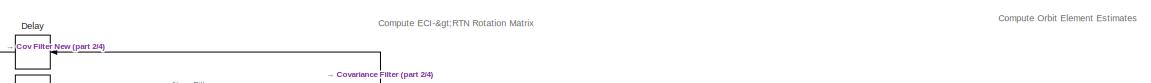
[diagram: root canvas - part 1/4, top center region]
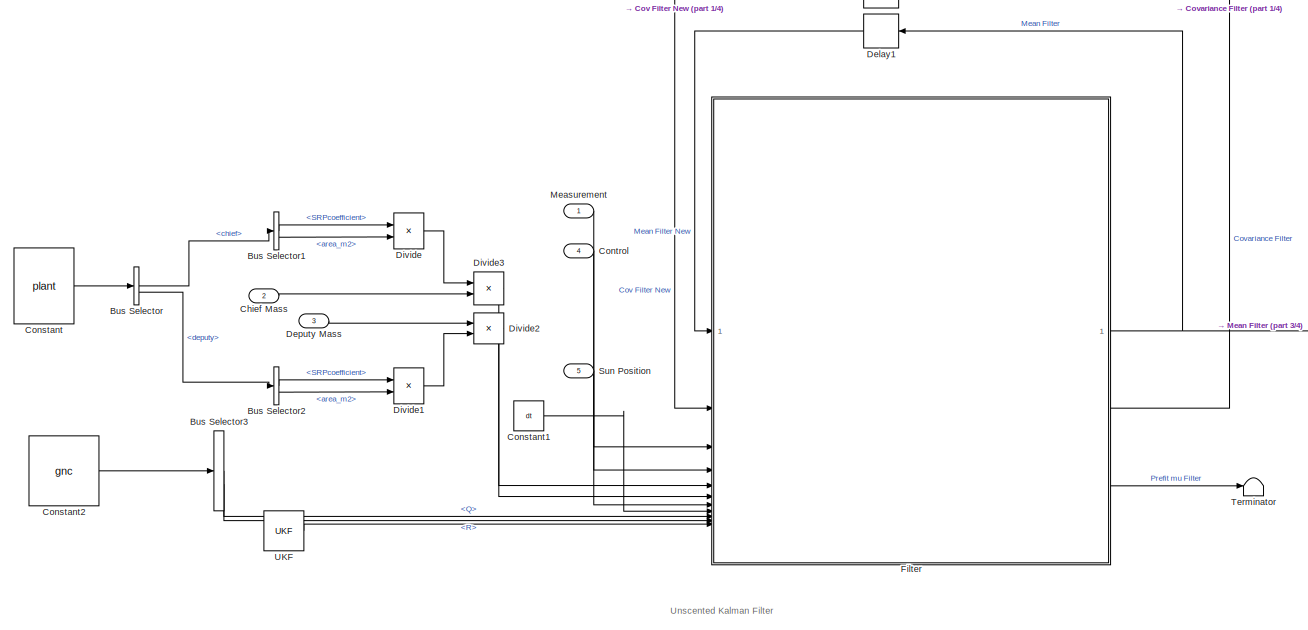
[diagram: root canvas - part 2/4, middle left region]
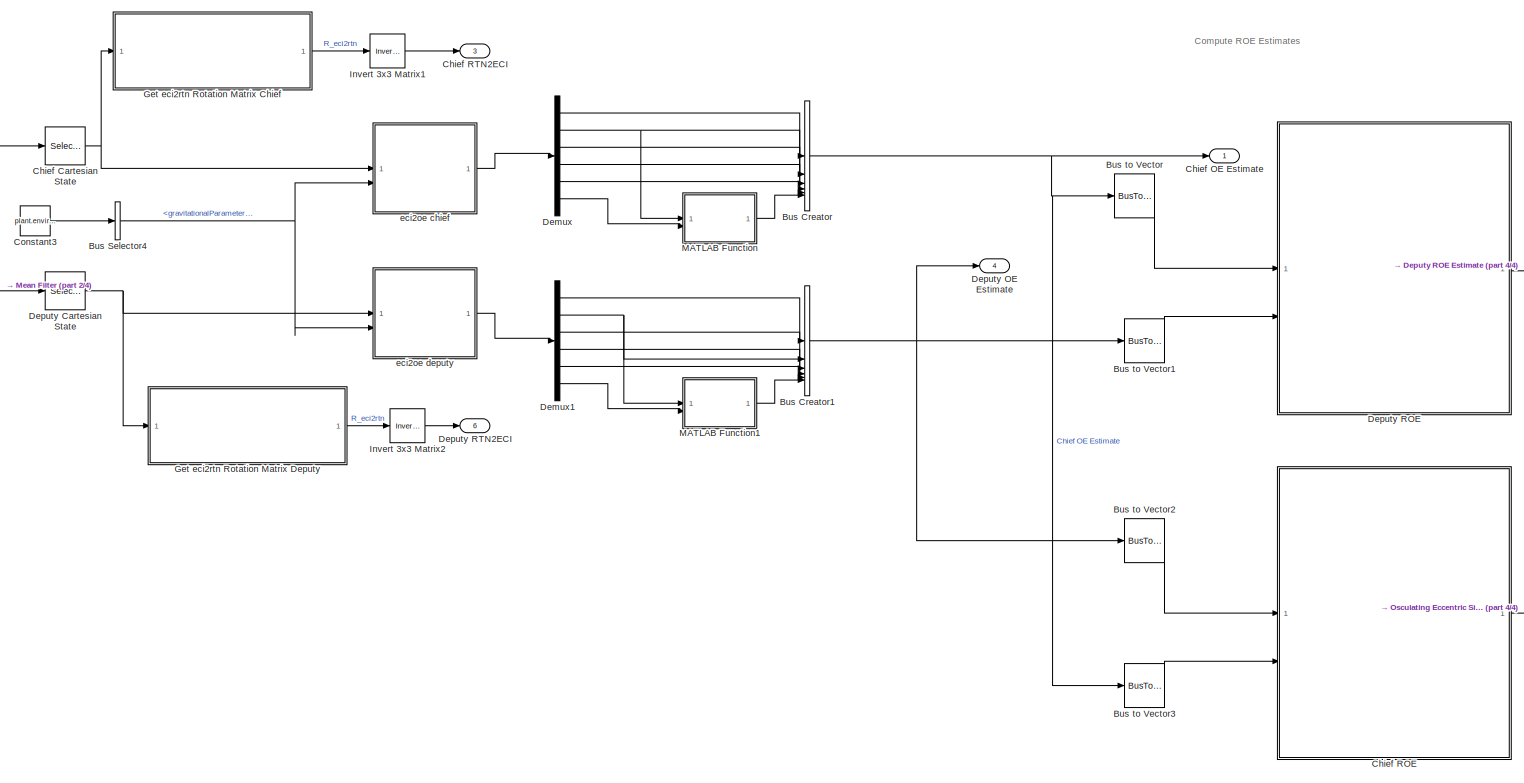
[diagram: root canvas - part 3/4, center side, full height]
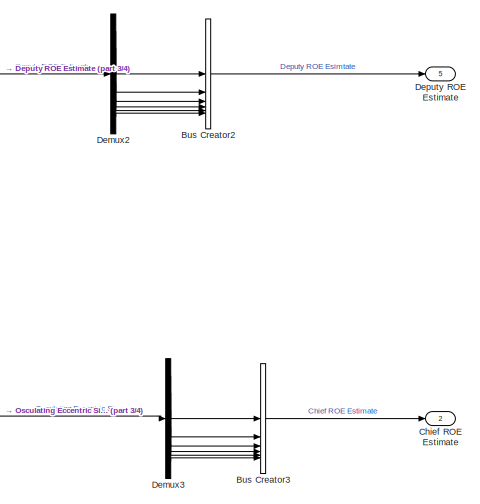
[diagram: root canvas - part 4/4, middle right region]
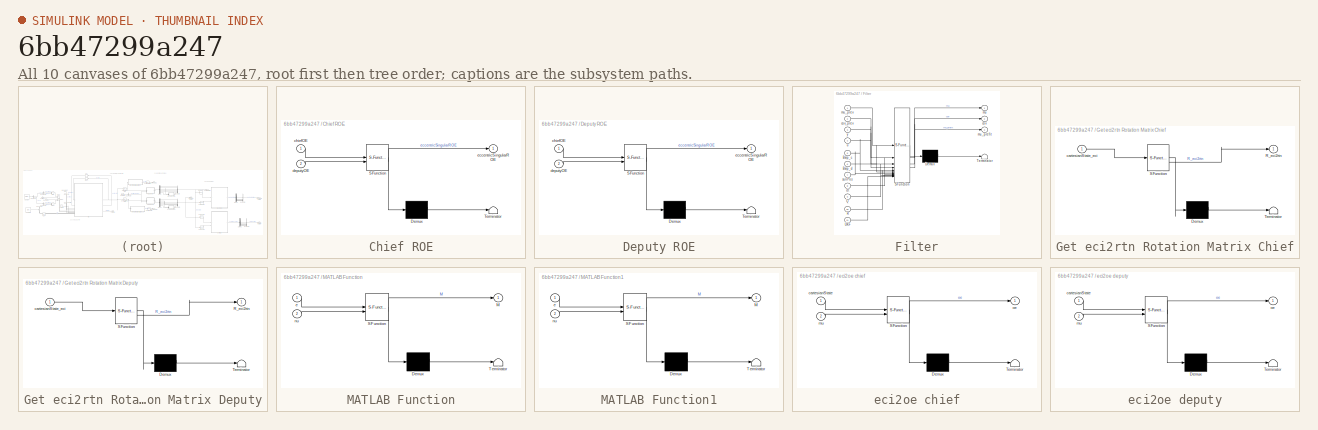
[diagram: thumbnail index - all 10 canvases of the model, root first then tree order]
MODEL slx_6bb47299a247
KIND model
CONFIG AbsTol = auto
CONFIG EnableMultiTasking = off
CONFIG FixedStep = dt
CONFIG MaxStep = auto
CONFIG MinStep = auto
CONFIG RelTol = 1e-3
CONFIG SampleTimeConstraint = Unconstrained
CONFIG SolverName = ode4
CONFIG StartTime = 0.0
CONFIG StopTime = 10.0
BLOCK [BusCreator] Bus Creator
  DisplayOption = bar
  InheritFromInputs = on
  Inputs = 6
  OutDataTypeStr = Bus: osculatingOrbitElements
BLOCK [BusCreator] Bus Creator1
  DisplayOption = bar
  InheritFromInputs = on
  Inputs = 6
  OutDataTypeStr = Bus: osculatingOrbitElements
BLOCK [BusCreator] Bus Creator2
  DisplayOption = bar
  InheritFromInputs = on
  Inputs = 6
  OutDataTypeStr = Bus: eccentricSingularROE
BLOCK [BusCreator] Bus Creator3
  DisplayOption = bar
  InheritFromInputs = on
  Inputs = 6
  OutDataTypeStr = Bus: eccentricSingularROE
BLOCK [BusSelector] Bus Selector
  OutputSignals = chief,deputy
BLOCK [BusSelector] Bus Selector1
  OutputSignals = properties.SRPcoefficient,properties.area_m2
BLOCK [BusSelector] Bus Selector2
  OutputSignals = properties.SRPcoefficient,properties.area_m2
BLOCK [BusSelector] Bus Selector3
  OutputSignals = navigation.Q,navigation.R
BLOCK [BusSelector] Bus Selector4
  OutputSignals = earthProperties.gravitationalParameter_m3_s2
BLOCK [BusToVector] Bus to Vector
BLOCK [BusToVector] Bus to Vector1
BLOCK [BusToVector] Bus to Vector2
BLOCK [BusToVector] Bus to Vector3
BLOCK [Selector] Chief Cartesian State
  IndexOptions = Index vector (dialog)
  Indices = 1:6
  InputPortWidth = 24
  OutputSizes = 1
BLOCK [Inport] Chief Mass
  Port = 2
BLOCK [Outport] Chief OE Estimate
  OutDataTypeStr = Bus: osculatingOrbitElements
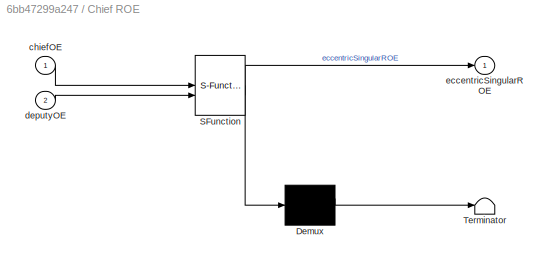
BLOCK [SubSystem] Chief ROE
  ErrorFcn = Stateflow.Translate.translate
  LibrarySourceBlock = simulink/User-Defined\nFunctions/MATLAB Function
  PermitHierarchicalResolution = ExplicitOnly
  SFBlockType = MATLAB Function
  TreatAsAtomicUnit = on
BLOCK [Outport] Chief ROE Estimate
  OutDataTypeStr = Bus: eccentricSingularROE
  Port = 2
BLOCK [Demux] Chief ROE/ Demux 
  Outputs = 1
BLOCK [S-Function] Chief ROE/ SFunction 
  EnableBusSupport = on
  FunctionName = sf_sfun
  PortCounts = [2 2]
  SFcnIsStateOwnerBlock = off
  SFunctionDeploymentMode = off
  Tag = Stateflow S-Function 5
BLOCK [Terminator] Chief ROE/ Terminator 
BLOCK [Inport] Chief ROE/chiefOE
BLOCK [Inport] Chief ROE/deputyOE
  Port = 2
BLOCK [Outport] Chief ROE/eccentricSingularROE
BLOCK [Outport] Chief RTN2ECI
  Port = 3
BLOCK [Constant] Constant
  OutDataTypeStr = Bus: plantBus
  Value = plant
BLOCK [Constant] Constant1
  Value = dt
BLOCK [Constant] Constant2
  OutDataTypeStr = Bus: gncBus
  Value = gnc
BLOCK [Constant] Constant3
  OutDataTypeStr = Bus: environment
  Value = plant.environment
BLOCK [Inport] Control
  Port = 4
  PortDimensions = 6
BLOCK [Delay] Delay
  DelayLength = 1
  InitialCondition = gnc.navigation.covarianceInit
  InputPortMap = u0
BLOCK [Delay] Delay1
  DelayLength = 1
  InitialCondition = gnc.navigation.stateInit
  InputPortMap = u0
BLOCK [Demux] Demux
  Outputs = 6
BLOCK [Demux] Demux1
  Outputs = 6
BLOCK [Demux] Demux2
  Outputs = 6
BLOCK [Demux] Demux3
  Outputs = 6
BLOCK [Selector] Deputy Cartesian State
  IndexOptions = Index vector (dialog)
  Indices = 7:12
  InputPortWidth = 24
  OutputSizes = 1
BLOCK [Inport] Deputy Mass
  Port = 3
BLOCK [Outport] Deputy OE Estimate
  OutDataTypeStr = Bus: osculatingOrbitElements
  Port = 4
BLOCK [SubSystem] Deputy ROE
  ErrorFcn = Stateflow.Translate.translate
  LibrarySourceBlock = simulink/User-Defined\nFunctions/MATLAB Function
  PermitHierarchicalResolution = ExplicitOnly
  SFBlockType = MATLAB Function
  TreatAsAtomicUnit = on
BLOCK [Outport] Deputy ROE Estimate
  OutDataTypeStr = Bus: eccentricSingularROE
  Port = 5
BLOCK [Demux] Deputy ROE/ Demux 
  Outputs = 1
BLOCK [S-Function] Deputy ROE/ SFunction 
  EnableBusSupport = on
  FunctionName = sf_sfun
  PortCounts = [2 2]
  SFcnIsStateOwnerBlock = off
  SFunctionDeploymentMode = off
  Tag = Stateflow S-Function 4
BLOCK [Terminator] Deputy ROE/ Terminator 
BLOCK [Inport] Deputy ROE/chiefOE
BLOCK [Inport] Deputy ROE/deputyOE
  Port = 2
BLOCK [Outport] Deputy ROE/eccentricSingularROE
BLOCK [Outport] Deputy RTN2ECI
  Port = 6
BLOCK [Product] Divide
  Inputs = **
BLOCK [Product] Divide1
  Inputs = **
BLOCK [Product] Divide2
  Inputs = /*
BLOCK [Product] Divide3
  Inputs = */
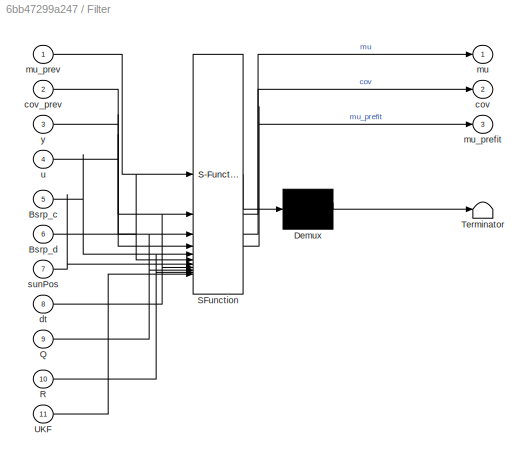
BLOCK [SubSystem] Filter
  ErrorFcn = Stateflow.Translate.translate
  LibrarySourceBlock = simulink/User-Defined\nFunctions/MATLAB Function
  PermitHierarchicalResolution = ExplicitOnly
  SFBlockType = MATLAB Function
  TreatAsAtomicUnit = on
BLOCK [Demux] Filter/ Demux 
  Outputs = 1
BLOCK [S-Function] Filter/ SFunction 
  EnableBusSupport = on
  FunctionName = sf_sfun
  PortCounts = [11 4]
  SFcnIsStateOwnerBlock = off
  SFunctionDeploymentMode = off
  Tag = Stateflow S-Function 2
BLOCK [Terminator] Filter/ Terminator 
BLOCK [Inport] Filter/Bsrp_c
  Port = 5
BLOCK [Inport] Filter/Bsrp_d
  Port = 6
BLOCK [Inport] Filter/Q
  Port = 9
BLOCK [Inport] Filter/R
  Port = 10
BLOCK [Inport] Filter/UKF
  Port = 11
BLOCK [Outport] Filter/cov
  Port = 2
BLOCK [Inport] Filter/cov_prev
  Port = 2
BLOCK [Inport] Filter/dt
  Port = 8
BLOCK [Outport] Filter/mu
BLOCK [Outport] Filter/mu_prefit
  Port = 3
BLOCK [Inport] Filter/mu_prev
BLOCK [Inport] Filter/sunPos
  Port = 7
BLOCK [Inport] Filter/u
  Port = 4
BLOCK [Inport] Filter/y
  Port = 3
BLOCK [SubSystem] Get eci2rtn Rotation Matrix Chief
  ErrorFcn = Stateflow.Translate.translate
  LibrarySourceBlock = simulink/User-Defined\nFunctions/MATLAB Function
  PermitHierarchicalResolution = ExplicitOnly
  SFBlockType = MATLAB Function
  TreatAsAtomicUnit = on
BLOCK [Demux] Get eci2rtn Rotation Matrix Chief/ Demux 
  Outputs = 1
BLOCK [S-Function] Get eci2rtn Rotation Matrix Chief/ SFunction 
  EnableBusSupport = on
  FunctionName = sf_sfun
  PortCounts = [1 2]
  SFcnIsStateOwnerBlock = off
  SFunctionDeploymentMode = off
  Tag = Stateflow S-Function 6
BLOCK [Terminator] Get eci2rtn Rotation Matrix Chief/ Terminator 
BLOCK [Outport] Get eci2rtn Rotation Matrix Chief/R_eci2rtn
BLOCK [Inport] Get eci2rtn Rotation Matrix Chief/cartesianState_eci
BLOCK [SubSystem] Get eci2rtn Rotation Matrix Deputy
  ErrorFcn = Stateflow.Translate.translate
  LibrarySourceBlock = simulink/User-Defined\nFunctions/MATLAB Function
  PermitHierarchicalResolution = ExplicitOnly
  SFBlockType = MATLAB Function
  TreatAsAtomicUnit = on
BLOCK [Demux] Get eci2rtn Rotation Matrix Deputy/ Demux 
  Outputs = 1
BLOCK [S-Function] Get eci2rtn Rotation Matrix Deputy/ SFunction 
  EnableBusSupport = on
  FunctionName = sf_sfun
  PortCounts = [1 2]
  SFcnIsStateOwnerBlock = off
  SFunctionDeploymentMode = off
  Tag = Stateflow S-Function 7
BLOCK [Terminator] Get eci2rtn Rotation Matrix Deputy/ Terminator 
BLOCK [Outport] Get eci2rtn Rotation Matrix Deputy/R_eci2rtn
BLOCK [Inport] Get eci2rtn Rotation Matrix Deputy/cartesianState_eci
BLOCK [Reference] Invert 3x3 Matrix1  REF=aerolibutil/Invert 
3x3 Matrix
  SourceBlock = aerolibutil/Invert \n3x3 Matrix
  SourceType = Invert 3x3 Matrix
BLOCK [Reference] Invert 3x3 Matrix2  REF=aerolibutil/Invert 
3x3 Matrix
  SourceBlock = aerolibutil/Invert \n3x3 Matrix
  SourceType = Invert 3x3 Matrix
BLOCK [SubSystem] MATLAB Function
  ErrorFcn = Stateflow.Translate.translate
  LibrarySourceBlock = simulink/User-Defined\nFunctions/MATLAB Function
  PermitHierarchicalResolution = ExplicitOnly
  SFBlockType = MATLAB Function
  TreatAsAtomicUnit = on
BLOCK [Demux] MATLAB Function/ Demux 
  Outputs = 1
BLOCK [S-Function] MATLAB Function/ SFunction 
  EnableBusSupport = on
  FunctionName = sf_sfun
  PortCounts = [2 2]
  SFcnIsStateOwnerBlock = off
  SFunctionDeploymentMode = off
  Tag = Stateflow S-Function 8
BLOCK [Terminator] MATLAB Function/ Terminator 
BLOCK [Outport] MATLAB Function/M
BLOCK [Inport] MATLAB Function/e
BLOCK [Inport] MATLAB Function/nu
  Port = 2
BLOCK [SubSystem] MATLAB Function1
  ErrorFcn = Stateflow.Translate.translate
  LibrarySourceBlock = simulink/User-Defined\nFunctions/MATLAB Function
  PermitHierarchicalResolution = ExplicitOnly
  SFBlockType = MATLAB Function
  TreatAsAtomicUnit = on
BLOCK [Demux] MATLAB Function1/ Demux 
  Outputs = 1
BLOCK [S-Function] MATLAB Function1/ SFunction 
  EnableBusSupport = on
  FunctionName = sf_sfun
  PortCounts = [2 2]
  SFcnIsStateOwnerBlock = off
  SFunctionDeploymentMode = off
  Tag = Stateflow S-Function 9
BLOCK [Terminator] MATLAB Function1/ Terminator 
BLOCK [Outport] MATLAB Function1/M
BLOCK [Inport] MATLAB Function1/e
BLOCK [Inport] MATLAB Function1/nu
  Port = 2
BLOCK [Inport] Measurement
  PortDimensions = 18
BLOCK [Inport] Sun Position
  Port = 5
  PortDimensions = 3
BLOCK [Terminator] Terminator
BLOCK [Constant] UKF
  Value = UKF
BLOCK [SubSystem] eci2oe chief
  ErrorFcn = Stateflow.Translate.translate
  LibrarySourceBlock = simulink/User-Defined\nFunctions/MATLAB Function
  PermitHierarchicalResolution = ExplicitOnly
  SFBlockType = MATLAB Function
  TreatAsAtomicUnit = on
BLOCK [Demux] eci2oe chief/ Demux 
  Outputs = 1
BLOCK [S-Function] eci2oe chief/ SFunction 
  EnableBusSupport = on
  FunctionName = sf_sfun
  PortCounts = [2 2]
  SFcnIsStateOwnerBlock = off
  SFunctionDeploymentMode = off
  Tag = Stateflow S-Function 3
BLOCK [Terminator] eci2oe chief/ Terminator 
BLOCK [Inport] eci2oe chief/cartesianState
BLOCK [Inport] eci2oe chief/mu
  Port = 2
BLOCK [Outport] eci2oe chief/oe
BLOCK [SubSystem] eci2oe deputy
  ErrorFcn = Stateflow.Translate.translate
  LibrarySourceBlock = simulink/User-Defined\nFunctions/MATLAB Function
  PermitHierarchicalResolution = ExplicitOnly
  SFBlockType = MATLAB Function
  TreatAsAtomicUnit = on
BLOCK [Demux] eci2oe deputy/ Demux 
  Outputs = 1
BLOCK [S-Function] eci2oe deputy/ SFunction 
  EnableBusSupport = on
  FunctionName = sf_sfun
  PortCounts = [2 2]
  SFcnIsStateOwnerBlock = off
  SFunctionDeploymentMode = off
  Tag = Stateflow S-Function 1
BLOCK [Terminator] eci2oe deputy/ Terminator 
BLOCK [Inport] eci2oe deputy/cartesianState
BLOCK [Inport] eci2oe deputy/mu
  Port = 2
BLOCK [Outport] eci2oe deputy/oe
ANNOTATION (root): Compute ECI->RTN Rotation Matrix
ANNOTATION (root): Compute Orbit Element Estimates
ANNOTATION (root): Compute ROE Estimates
ANNOTATION (root): Unscented Kalman Filter
NET Bus Creator1:1 -> Bus to Vector1:1, Bus to Vector2:1, Deputy OE Estimate:1
LINE Bus Creator2:1 -> Deputy ROE Estimate:1
LINE Bus Creator3:1 -> Chief ROE Estimate:1
NET Bus Creator:1 -> Bus to Vector3:1, Bus to Vector:1, Chief OE Estimate:1
LINE Bus Selector1:1 -> Divide:1
LINE Bus Selector1:2 -> Divide:2
LINE Bus Selector2:1 -> Divide1:1
LINE Bus Selector2:2 -> Divide1:2
LINE Bus Selector3:1 -> Filter:9
LINE Bus Selector3:2 -> Filter:10
NET Bus Selector4:1 -> eci2oe chief:2, eci2oe deputy:2
LINE Bus Selector:1 -> Bus Selector1:1
LINE Bus Selector:2 -> Bus Selector2:1
LINE Bus to Vector1:1 -> Deputy ROE:2
LINE Bus to Vector2:1 -> Chief ROE:1
LINE Bus to Vector3:1 -> Chief ROE:2
LINE Bus to Vector:1 -> Deputy ROE:1
NET Chief Cartesian State:1 -> Get eci2rtn Rotation Matrix Chief:1, eci2oe chief:1
LINE Chief Mass:1 -> Divide3:2
LINE Chief ROE:1 -> Demux3:1
LINE Constant1:1 -> Filter:8
LINE Constant2:1 -> Bus Selector3:1
LINE Constant3:1 -> Bus Selector4:1
LINE Constant:1 -> Bus Selector:1
LINE Control:1 -> Filter:4
LINE Delay1:1 -> Filter:1
LINE Delay:1 -> Filter:2
LINE Demux1:1 -> Bus Creator1:1
NET Demux1:2 -> Bus Creator1:2, MATLAB Function1:1
LINE Demux1:3 -> Bus Creator1:3
LINE Demux1:4 -> Bus Creator1:4
LINE Demux1:5 -> Bus Creator1:5
LINE Demux1:6 -> MATLAB Function1:2
LINE Demux2:1 -> Bus Creator2:1
LINE Demux2:2 -> Bus Creator2:2
LINE Demux2:3 -> Bus Creator2:3
LINE Demux2:4 -> Bus Creator2:4
LINE Demux2:5 -> Bus Creator2:5
LINE Demux2:6 -> Bus Creator2:6
LINE Demux3:1 -> Bus Creator3:1
LINE Demux3:2 -> Bus Creator3:2
LINE Demux3:3 -> Bus Creator3:3
LINE Demux3:4 -> Bus Creator3:4
LINE Demux3:5 -> Bus Creator3:5
LINE Demux3:6 -> Bus Creator3:6
LINE Demux:1 -> Bus Creator:1
NET Demux:2 -> Bus Creator:2, MATLAB Function:1
LINE Demux:3 -> Bus Creator:3
LINE Demux:4 -> Bus Creator:4
LINE Demux:5 -> Bus Creator:5
LINE Demux:6 -> MATLAB Function:2
NET Deputy Cartesian State:1 -> Get eci2rtn Rotation Matrix Deputy:1, eci2oe deputy:1
LINE Deputy Mass:1 -> Divide2:1
LINE Deputy ROE:1 -> Demux2:1
LINE Divide1:1 -> Divide2:2
LINE Divide2:1 -> Filter:6
LINE Divide3:1 -> Filter:5
LINE Divide:1 -> Divide3:1
NET Filter:1 -> Chief Cartesian State:1, Delay1:1, Deputy Cartesian State:1
LINE Filter:2 -> Delay:1
LINE Filter:3 -> Terminator:1
LINE Get eci2rtn Rotation Matrix Chief:1 -> Invert 3x3 Matrix1:1
LINE Get eci2rtn Rotation Matrix Deputy:1 -> Invert 3x3 Matrix2:1
LINE Invert 3x3 Matrix1:1 -> Chief RTN2ECI:1
LINE Invert 3x3 Matrix2:1 -> Deputy RTN2ECI:1
LINE MATLAB Function1:1 -> Bus Creator1:6
LINE MATLAB Function:1 -> Bus Creator:6
LINE Measurement:1 -> Filter:3
LINE Sun Position:1 -> Filter:7
LINE UKF:1 -> Filter:11
LINE eci2oe chief:1 -> Demux:1
LINE eci2oe deputy:1 -> Demux1:1
note: NET lines group one-source signal fan-out (src -> all destinations, sorted); 1:1 wires keep LINE
CHART eci2oe deputy states=1 transitions=1
  STATE_LABEL 'eML_blk_kernel()'
  STATE_LABEL 'SCRIPT:\nfunction oe = eci2oe(cartesianState,mu)\n[oe,~,~,~] = eci2oe( cartesianState , mu );\nend\n'
CHART Filter states=1 transitions=1
  STATE_LABEL 'eML_blk_kernel()'
  STATE_LABEL 'SCRIPT:\nfunction [mu,cov,mu_prefit] = filter(mu_prev,cov_prev, y, u, Bsrp_c, Bsrp_d, sunPos, dt, Q, R, UKF)\n\nif UKF\n    [mu,cov,mu_prefit] = ukf(mu_prev,cov_prev, y, u, Bsrp_c, Bsrp_d, sunPos, dt, Q, R);\nelse\n    [mu,cov,mu_prefit] = ekf(mu_prev,cov_prev, y, u, Bsrp_c, Bsrp_d, sunPos, dt, Q, R);\nend\n'
CHART eci2oe chief states=1 transitions=1
  STATE_LABEL 'eML_blk_kernel()'
  STATE_LABEL 'SCRIPT:\nfunction oe = eci2oe(cartesianState,mu)\n[oe,~,~,~] = eci2oe( cartesianState , mu );\nend\n'
CHART Deputy ROE states=1 transitions=1
  STATE_LABEL 'eML_blk_kernel()'
  STATE_LABEL 'SCRIPT:\nfunction eccentricSingularROE = computeEccentricSingularROE(chiefOE, deputyOE)\n\neccentricSingularROE = computeEccentricSingularROE(chiefOE, deputyOE);\n\nend\n'
CHART Chief ROE states=1 transitions=1
  STATE_LABEL 'eML_blk_kernel()'
  STATE_LABEL 'SCRIPT:\nfunction eccentricSingularROE = computeEccentricSingularROE(chiefOE, deputyOE)\n\neccentricSingularROE = computeEccentricSingularROE(chiefOE, deputyOE);\n\nend\n'
CHART Get eci2rtn Rotation Matrix Chief states=1 transitions=1
  STATE_LABEL 'eML_blk_kernel()'
  STATE_LABEL 'SCRIPT:\nfunction R_eci2rtn  = eci2rtn(cartesianState_eci)\n\n[~, R_eci2rtn] = eci2rtn(cartesianState_eci);\n\nend\n'
CHART Get eci2rtn Rotation Matrix Deputy states=1 transitions=1
  STATE_LABEL 'eML_blk_kernel()'
  STATE_LABEL 'SCRIPT:\nfunction R_eci2rtn  = eci2rtn(cartesianState_eci)\n\n[~, R_eci2rtn] = eci2rtn(cartesianState_eci);\n\nend\n'
CHART MATLAB Function states=1 transitions=1
  STATE_LABEL 'eML_blk_kernel()'
  STATE_LABEL 'SCRIPT:\nfunction M = nu2M(e,nu)\nM = nu2M(nu,e);\nend\n'
CHART MATLAB Function1 states=1 transitions=1
  STATE_LABEL 'eML_blk_kernel()'
  STATE_LABEL 'SCRIPT:\nfunction M = nu2M(e,nu)\nM = nu2M(nu,e);\nend\n'
CHART  states=0 transitions=0
CHART  states=0 transitions=0
CHART  states=0 transitions=0
CHART  states=0 transitions=0
CHART  states=0 transitions=0
CHART  states=0 transitions=0
CHART  states=0 transitions=0
CHART  states=0 transitions=0
CHART  states=0 transitions=0
